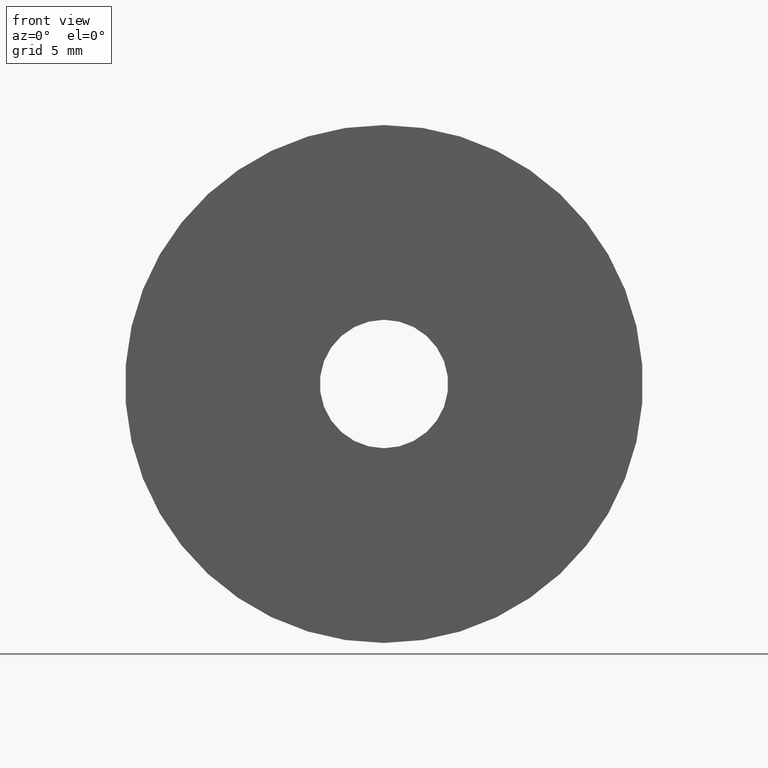
[diagram: clean part render]
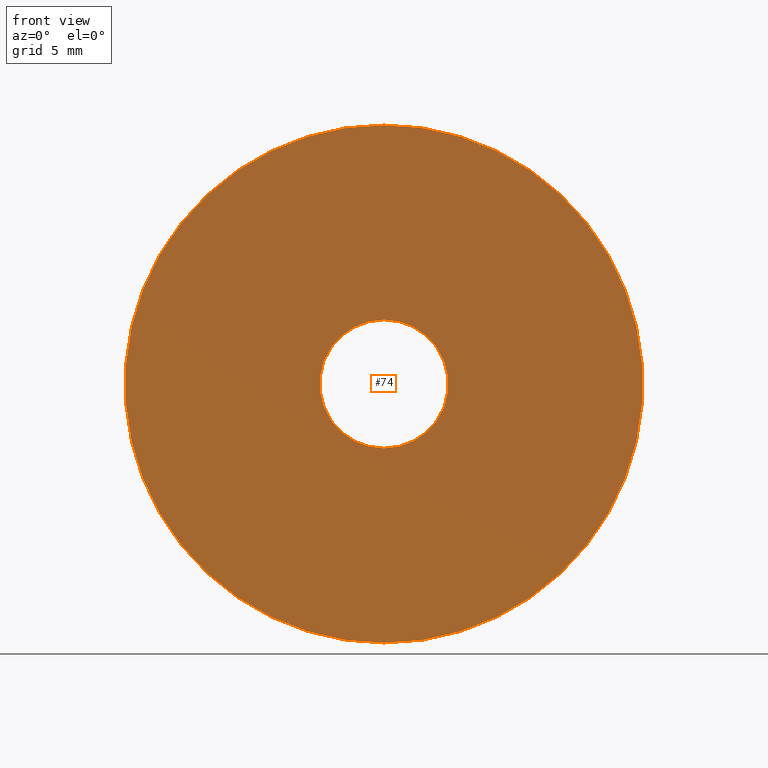
[diagram: same view with one face highlighted and labeled with its STEP entity id]
A machine part, front view. The second image highlights one B-rep face of the part: STEP entity #74.
In plain terms, the highlighted planar face has unit normal (0, 1, 0).
Its self-contained STEP definition (entity closure, byte-faithful):
#5 = DIRECTION ( 'NONE',  ( 0.000000000000000000, 0.000000000000000000, 1.000000000000000000 ) ) ;
#13 = ORIENTED_EDGE ( 'NONE', *, *, #35, .F. ) ;
#32 = VERTEX_POINT ( 'NONE', #210 ) ;
#35 = EDGE_CURVE ( 'NONE', #32, #70, #175, .T. ) ;
#37 = AXIS2_PLACEMENT_3D ( 'NONE', #54, #135, #116 ) ;
#39 = DIRECTION ( 'NONE',  ( 0.000000000000000000, 0.000000000000000000, 1.000000000000000000 ) ) ;
#41 = CARTESIAN_POINT ( 'NONE',  ( 0.000000000000000000, -0.1499999999999999944, 0.000000000000000000 ) ) ;
#50 = AXIS2_PLACEMENT_3D ( 'NONE', #111, #245, #58 ) ;
#52 = EDGE_CURVE ( 'NONE', #198, #223, #119, .T. ) ;
#54 = CARTESIAN_POINT ( 'NONE',  ( 0.000000000000000000, -0.1499999999999999944, 0.000000000000000000 ) ) ;
#57 = FACE_BOUND ( 'NONE', #243, .T. ) ;
#58 = DIRECTION ( 'NONE',  ( 0.000000000000000000, 0.000000000000000000, 1.000000000000000000 ) ) ;
#63 = AXIS2_PLACEMENT_3D ( 'NONE', #227, #133, #39 ) ;
#70 = VERTEX_POINT ( 'NONE', #137 ) ;
#74 = ADVANCED_FACE ( 'NONE', ( #57, #225 ), #208, .F. ) ;
#78 = ORIENTED_EDGE ( 'NONE', *, *, #169, .F. ) ;
#94 = CARTESIAN_POINT ( 'NONE',  ( 0.000000000000000000, -0.1499999999999999944, 0.000000000000000000 ) ) ;
#97 = DIRECTION ( 'NONE',  ( 0.000000000000000000, 1.000000000000000000, 0.000000000000000000 ) ) ;
#106 = ORIENTED_EDGE ( 'NONE', *, *, #52, .T. ) ;
#109 = EDGE_CURVE ( 'NONE', #223, #198, #179, .T. ) ;
#111 = CARTESIAN_POINT ( 'NONE',  ( 0.000000000000000000, -0.1499999999999999944, 0.000000000000000000 ) ) ;
#116 = DIRECTION ( 'NONE',  ( 0.000000000000000000, -0.000000000000000000, 1.000000000000000000 ) ) ;
#119 = CIRCLE ( 'NONE', #50, 3.100000000000000089 ) ;
#133 = DIRECTION ( 'NONE',  ( 0.000000000000000000, 1.000000000000000000, 0.000000000000000000 ) ) ;
#135 = DIRECTION ( 'NONE',  ( 0.000000000000000000, 1.000000000000000000, 0.000000000000000000 ) ) ;
#137 = CARTESIAN_POINT ( 'NONE',  ( 0.000000000000000000, -0.1499999999999999944, -12.50000000000000000 ) ) ;
#138 = DIRECTION ( 'NONE',  ( 0.000000000000000000, 1.000000000000000000, 0.000000000000000000 ) ) ;
#160 = CARTESIAN_POINT ( 'NONE',  ( 3.796405077356794918E-16, -0.1499999999999999944, -3.100000000000000089 ) ) ;
#169 = EDGE_CURVE ( 'NONE', #70, #32, #176, .T. ) ;
#173 = EDGE_LOOP ( 'NONE', ( #78, #13 ) ) ;
#175 = CIRCLE ( 'NONE', #200, 12.50000000000000000 ) ;
#176 = CIRCLE ( 'NONE', #63, 12.50000000000000000 ) ;
#179 = CIRCLE ( 'NONE', #241, 3.100000000000000089 ) ;
#181 = CARTESIAN_POINT ( 'NONE',  ( 0.000000000000000000, -0.1499999999999999944, 3.100000000000000089 ) ) ;
#198 = VERTEX_POINT ( 'NONE', #160 ) ;
#200 = AXIS2_PLACEMENT_3D ( 'NONE', #94, #138, #229 ) ;
#208 = PLANE ( 'NONE',  #37 ) ;
#210 = CARTESIAN_POINT ( 'NONE',  ( 1.530808498934191521E-15, -0.1499999999999999944, 12.50000000000000000 ) ) ;
#223 = VERTEX_POINT ( 'NONE', #181 ) ;
#225 = FACE_OUTER_BOUND ( 'NONE', #173, .T. ) ;
#227 = CARTESIAN_POINT ( 'NONE',  ( 0.000000000000000000, -0.1499999999999999944, 0.000000000000000000 ) ) ;
#229 = DIRECTION ( 'NONE',  ( 0.000000000000000000, 0.000000000000000000, 1.000000000000000000 ) ) ;
#230 = ORIENTED_EDGE ( 'NONE', *, *, #109, .T. ) ;
#241 = AXIS2_PLACEMENT_3D ( 'NONE', #41, #97, #5 ) ;
#243 = EDGE_LOOP ( 'NONE', ( #230, #106 ) ) ;
#245 = DIRECTION ( 'NONE',  ( 0.000000000000000000, 1.000000000000000000, 0.000000000000000000 ) ) ;